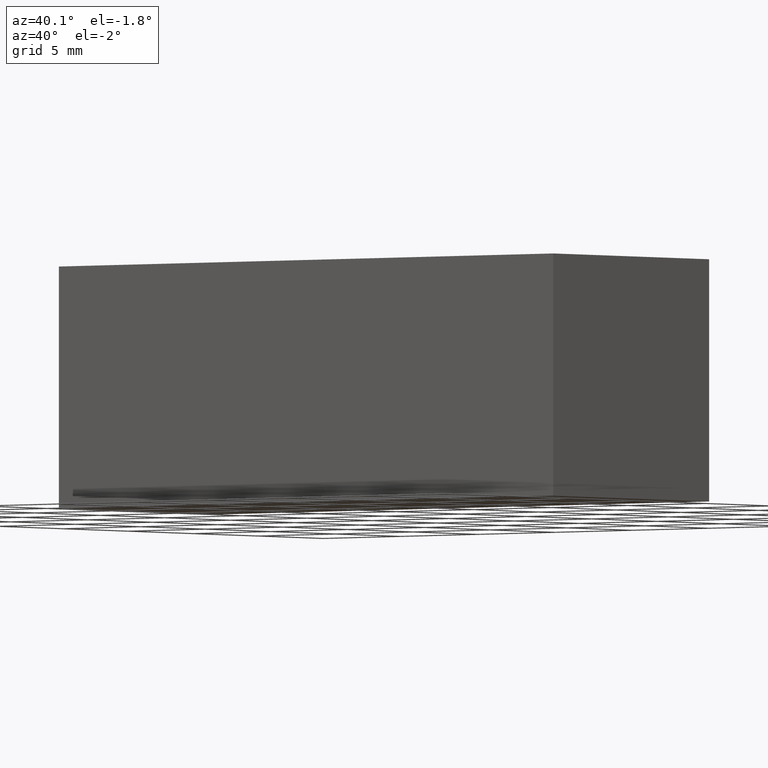
[diagram: clean part render]
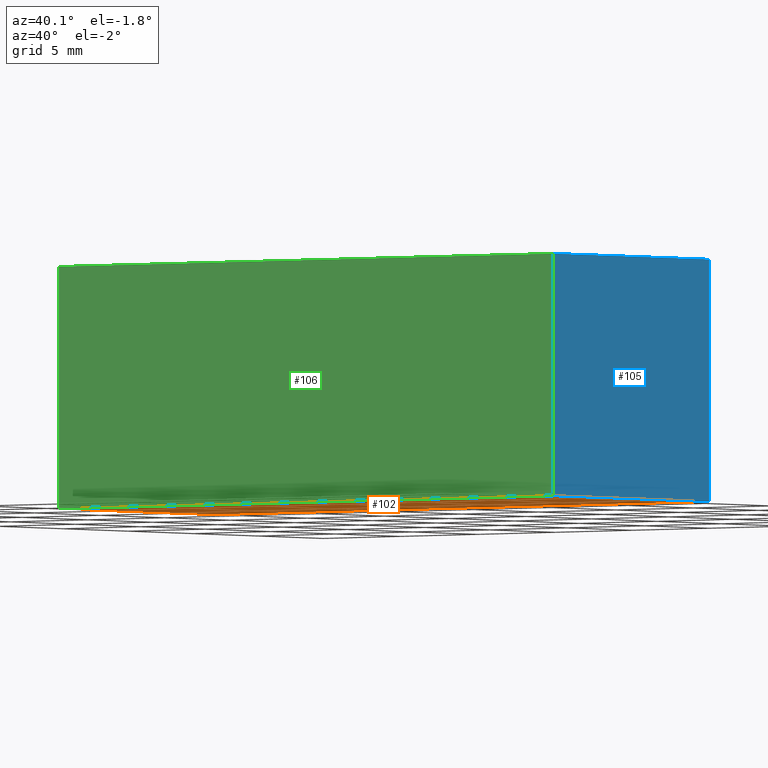
[diagram: same view with three faces highlighted in distinct colors, each labeled with its STEP entity id]
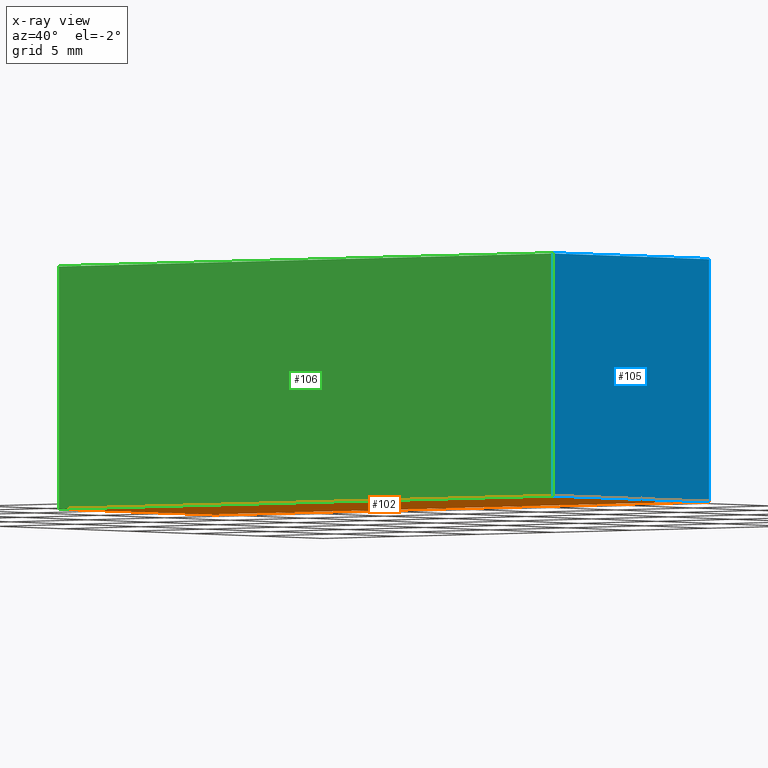
[diagram: x-ray of the same camera — body ghosted, the three highlighted faces saturated]
A machine part, auxiliary view with three faces highlighted in distinct colors.
The next image is the same camera in x-ray (body ghosted, the three faces saturated) — at least one of them is partly hidden behind the body in this view.
Their STEP definitions:

[orange] entity #102 — the highlighted planar face has unit normal (0, 0, 1).
#16=FACE_OUTER_BOUND('',#22,.T.);
#22=EDGE_LOOP('',(#72,#73,#74,#75));
#28=LINE('',#164,#40);
#29=LINE('',#166,#41);
#30=LINE('',#168,#42);
#31=LINE('',#169,#43);
#40=VECTOR('',#138,10.);
#41=VECTOR('',#139,10.);
#42=VECTOR('',#140,10.);
#43=VECTOR('',#141,10.);
#52=VERTEX_POINT('',#162);
#53=VERTEX_POINT('',#163);
#54=VERTEX_POINT('',#165);
#55=VERTEX_POINT('',#167);
#60=EDGE_CURVE('',#52,#53,#28,.T.);
#61=EDGE_CURVE('',#54,#52,#29,.T.);
#62=EDGE_CURVE('',#55,#54,#30,.T.);
#63=EDGE_CURVE('',#53,#55,#31,.T.);
#72=ORIENTED_EDGE('',*,*,#60,.F.);
#73=ORIENTED_EDGE('',*,*,#61,.F.);
#74=ORIENTED_EDGE('',*,*,#62,.F.);
#75=ORIENTED_EDGE('',*,*,#63,.F.);
#96=PLANE('',#128);
#102=ADVANCED_FACE('',(#16),#96,.F.);
#128=AXIS2_PLACEMENT_3D('',#161,#136,#137);
#136=DIRECTION('center_axis',(0.,0.,1.));
#137=DIRECTION('ref_axis',(1.,0.,0.));
#138=DIRECTION('',(-3.70074341541718E-16,1.,0.));
#139=DIRECTION('',(1.,0.,0.));
#140=DIRECTION('',(0.,-1.,0.));
#141=DIRECTION('',(-1.,-2.77555756156289E-16,0.));
#161=CARTESIAN_POINT('Origin',(2.77555756156289E-16,2.54846648834411E-15,
-6.));
#162=CARTESIAN_POINT('',(16.,-6.,-6.));
#163=CARTESIAN_POINT('',(16.,6.00000000000001,-6.));
#164=CARTESIAN_POINT('',(16.,-6.,-6.));
#165=CARTESIAN_POINT('',(-16.,-6.,-6.));
#166=CARTESIAN_POINT('',(-16.,-6.,-6.));
#167=CARTESIAN_POINT('',(-16.,6.,-6.));
#168=CARTESIAN_POINT('',(-16.,6.,-6.));
#169=CARTESIAN_POINT('',(16.,6.00000000000001,-6.));

[blue] entity #105 — the highlighted planar face has unit normal (1, 0, 0).
#19=FACE_OUTER_BOUND('',#25,.T.);
#25=EDGE_LOOP('',(#84,#85,#86,#87));
#28=LINE('',#164,#40);
#36=LINE('',#179,#48);
#37=LINE('',#182,#49);
#38=LINE('',#183,#50);
#40=VECTOR('',#138,10.);
#48=VECTOR('',#150,10.);
#49=VECTOR('',#153,10.);
#50=VECTOR('',#154,10.);
#52=VERTEX_POINT('',#162);
#53=VERTEX_POINT('',#163);
#58=VERTEX_POINT('',#177);
#59=VERTEX_POINT('',#181);
#60=EDGE_CURVE('',#52,#53,#28,.T.);
#68=EDGE_CURVE('',#53,#58,#36,.T.);
#69=EDGE_CURVE('',#58,#59,#37,.T.);
#70=EDGE_CURVE('',#52,#59,#38,.T.);
#84=ORIENTED_EDGE('',*,*,#69,.T.);
#85=ORIENTED_EDGE('',*,*,#70,.F.);
#86=ORIENTED_EDGE('',*,*,#60,.T.);
#87=ORIENTED_EDGE('',*,*,#68,.T.);
#99=PLANE('',#131);
#105=ADVANCED_FACE('',(#19),#99,.T.);
#131=AXIS2_PLACEMENT_3D('',#180,#151,#152);
#138=DIRECTION('',(-3.70074341541718E-16,1.,0.));
#150=DIRECTION('',(0.,0.,1.));
#151=DIRECTION('center_axis',(1.,3.70074341541719E-16,0.));
#152=DIRECTION('ref_axis',(0.,0.,-1.));
#153=DIRECTION('',(3.70074341541718E-16,-1.,0.));
#154=DIRECTION('',(0.,0.,1.));
#162=CARTESIAN_POINT('',(16.,-6.,-6.));
#163=CARTESIAN_POINT('',(16.,6.00000000000001,-6.));
#164=CARTESIAN_POINT('',(16.,-6.,-6.));
#177=CARTESIAN_POINT('',(16.,6.00000000000001,6.));
#179=CARTESIAN_POINT('',(16.,6.00000000000001,0.));
#180=CARTESIAN_POINT('Origin',(16.,6.00000000000001,0.));
#181=CARTESIAN_POINT('',(16.,-6.,6.));
#182=CARTESIAN_POINT('',(16.,-6.,6.));
#183=CARTESIAN_POINT('',(16.,-6.,0.));

[green] entity #106 — the highlighted planar face has unit normal (0, -1, 0).
#20=FACE_OUTER_BOUND('',#26,.T.);
#26=EDGE_LOOP('',(#88,#89,#90,#91));
#29=LINE('',#166,#41);
#34=LINE('',#175,#46);
#38=LINE('',#183,#50);
#39=LINE('',#185,#51);
#41=VECTOR('',#139,10.);
#46=VECTOR('',#146,10.);
#50=VECTOR('',#154,10.);
#51=VECTOR('',#157,10.);
#52=VERTEX_POINT('',#162);
#54=VERTEX_POINT('',#165);
#56=VERTEX_POINT('',#171);
#59=VERTEX_POINT('',#181);
#61=EDGE_CURVE('',#54,#52,#29,.T.);
#66=EDGE_CURVE('',#56,#54,#34,.T.);
#70=EDGE_CURVE('',#52,#59,#38,.T.);
#71=EDGE_CURVE('',#59,#56,#39,.T.);
#88=ORIENTED_EDGE('',*,*,#71,.T.);
#89=ORIENTED_EDGE('',*,*,#66,.T.);
#90=ORIENTED_EDGE('',*,*,#61,.T.);
#91=ORIENTED_EDGE('',*,*,#70,.T.);
#100=PLANE('',#132);
#106=ADVANCED_FACE('',(#20),#100,.T.);
#132=AXIS2_PLACEMENT_3D('',#184,#155,#156);
#139=DIRECTION('',(1.,0.,0.));
#146=DIRECTION('',(0.,0.,-1.));
#154=DIRECTION('',(0.,0.,1.));
#155=DIRECTION('center_axis',(0.,-1.,0.));
#156=DIRECTION('ref_axis',(0.,0.,-1.));
#157=DIRECTION('',(-1.,0.,0.));
#162=CARTESIAN_POINT('',(16.,-6.,-6.));
#165=CARTESIAN_POINT('',(-16.,-6.,-6.));
#166=CARTESIAN_POINT('',(-16.,-6.,-6.));
#171=CARTESIAN_POINT('',(-16.,-6.,6.));
#175=CARTESIAN_POINT('',(-16.,-6.,0.));
#181=CARTESIAN_POINT('',(16.,-6.,6.));
#183=CARTESIAN_POINT('',(16.,-6.,0.));
#184=CARTESIAN_POINT('Origin',(16.,-6.,0.));
#185=CARTESIAN_POINT('',(-16.,-6.,6.));